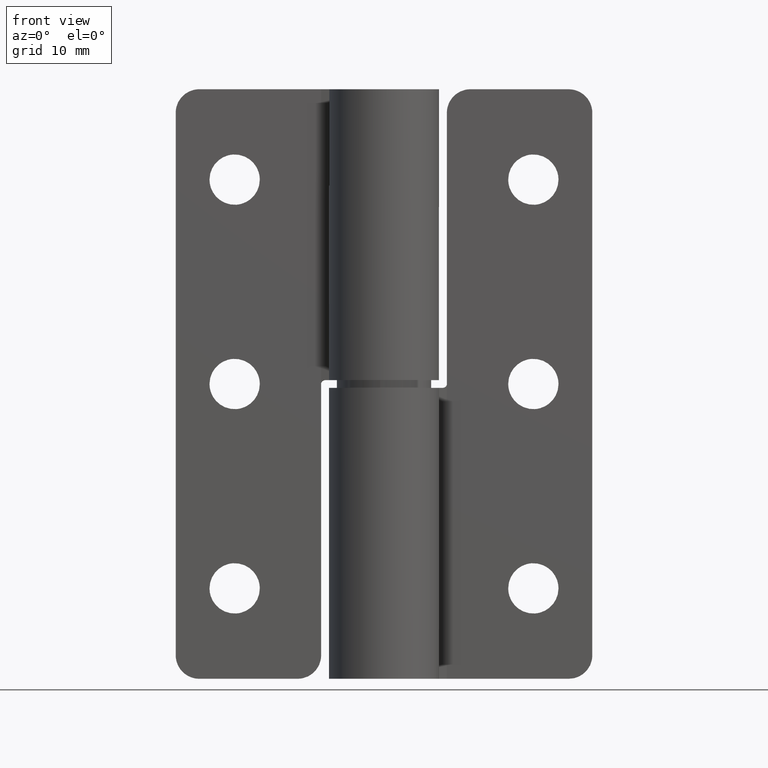
[diagram: clean part render]
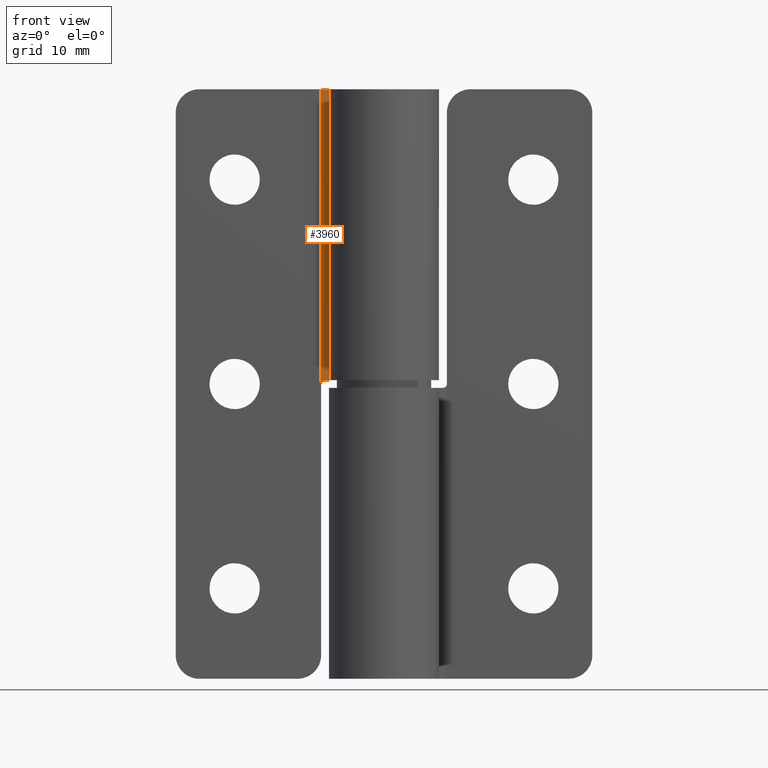
[diagram: same view with one face highlighted and labeled with its STEP entity id]
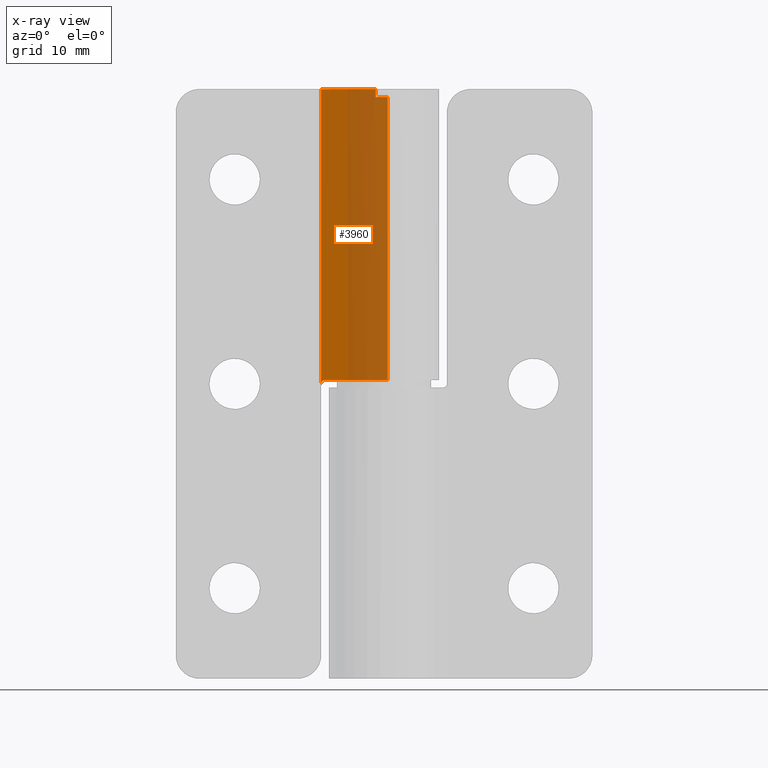
[diagram: x-ray of the same camera — body ghosted, the highlighted face saturated]
A machine part, front view. The second image highlights one B-rep face of the part: STEP entity #3960.
The next image is the same camera in x-ray: the body ghosted, the highlighted face saturated — about 59% of this face is hidden behind the body in this view.
In plain terms, the highlighted face is a freeform B-spline surface patch.
Its self-contained STEP definition (entity closure, byte-faithful):
#3111=CARTESIAN_POINT('',(-8.000000000098821,5.000000000012459,37.500000000012548));
#3112=VERTEX_POINT('',#3111);
#3113=CARTESIAN_POINT('',(-7.499999999940360,4.939333489380671,38.000000000011653));
#3114=VERTEX_POINT('',#3113);
#3115=CARTESIAN_POINT('',(-8.000000000098821,5.000000000012459,37.500000000012548));
#3116=CARTESIAN_POINT('',(-8.000014126965514,5.000001714067864,37.549260720297063));
#3117=CARTESIAN_POINT('',(-7.982905817159173,4.997925911150963,37.664249944378632));
#3118=CARTESIAN_POINT('',(-7.911756588051251,4.989293160225435,37.796766730162503));
#3119=CARTESIAN_POINT('',(-7.795246546859979,4.975156644924645,37.912839396133663));
#3120=CARTESIAN_POINT('',(-7.663045724512573,4.959116319740815,37.983171383495211));
#3121=CARTESIAN_POINT('',(-7.548903565997150,4.945267106798895,38.000008448926501));
#3122=CARTESIAN_POINT('',(-7.499999999940360,4.939333489380671,38.000000000011653));
#3123=B_SPLINE_CURVE_WITH_KNOTS('',3,(#3115,#3116,#3117,#3118,#3119,#3120,#3121,#3122),.UNSPECIFIED.,.F.,.U.,(4,1,1,1,1,4),(0.000003527731848,0.147817530585091,0.344911849634361,0.443448021781590,0.640543383678533,0.788359904573980),.UNSPECIFIED.);
#3124=EDGE_CURVE('',#3112,#3114,#3123,.T.);
#3182=CARTESIAN_POINT('',(-1.050000000100060,4.156735502497970,75.000000000036593));
#3183=VERTEX_POINT('',#3182);
#3189=CARTESIAN_POINT('',(-1.050000000100060,4.156735502497970,74.000000000036593));
#3190=VERTEX_POINT('',#3189);
#3191=CARTESIAN_POINT('',(-1.050000000100060,4.156735502497970,75.000000000036593));
#3192=CARTESIAN_POINT('',(-1.050000000100060,4.156735502497970,74.000000000036593));
#3193=QUASI_UNIFORM_CURVE('',1,(#3191,#3192),.UNSPECIFIED.,.F.,.U.);
#3194=EDGE_CURVE('',#3183,#3190,#3193,.T.);
#3272=CARTESIAN_POINT('',(0.481798594352989,3.970877751124575,74.000000000036593));
#3273=VERTEX_POINT('',#3272);
#3274=CARTESIAN_POINT('',(0.481798594352989,3.970877751124575,74.000000000036593));
#3275=CARTESIAN_POINT('',(-1.050000000100060,4.156735502497970,74.000000000036593));
#3276=QUASI_UNIFORM_CURVE('',1,(#3274,#3275),.UNSPECIFIED.,.F.,.U.);
#3277=EDGE_CURVE('',#3273,#3190,#3276,.T.);
#3384=CARTESIAN_POINT('',(0.481798594352989,3.970877751124575,37.999999999999147));
#3385=VERTEX_POINT('',#3384);
#3386=CARTESIAN_POINT('',(-7.499999999940360,4.939333489380671,38.000000000011653));
#3387=CARTESIAN_POINT('',(0.481798594352989,3.970877751124575,37.999999999999147));
#3388=QUASI_UNIFORM_CURVE('',1,(#3386,#3387),.UNSPECIFIED.,.F.,.U.);
#3389=EDGE_CURVE('',#3114,#3385,#3388,.T.);
#3811=CARTESIAN_POINT('',(-8.000000000098821,5.000000000012459,75.000000000036593));
#3812=VERTEX_POINT('',#3811);
#3813=CARTESIAN_POINT('',(-8.000000000098821,5.000000000012459,37.500000000012548));
#3814=CARTESIAN_POINT('',(-8.000000000098821,5.000000000012459,75.000000000036593));
#3815=QUASI_UNIFORM_CURVE('',1,(#3813,#3814),.UNSPECIFIED.,.F.,.U.);
#3816=EDGE_CURVE('',#3112,#3812,#3815,.T.);
#3933=CARTESIAN_POINT('',(-1.050000000100060,4.156735502497970,75.000000000036593));
#3934=CARTESIAN_POINT('',(-8.000000000098821,5.000000000012459,75.000000000036593));
#3935=QUASI_UNIFORM_CURVE('',1,(#3933,#3934),.UNSPECIFIED.,.F.,.U.);
#3936=EDGE_CURVE('',#3183,#3812,#3935,.T.);
#3942=CARTESIAN_POINT('',(0.905464417706485,3.919473096787263,76.873124927355533));
#3943=CARTESIAN_POINT('',(-8.423666050951887,5.051404681952982,76.873124927355533));
#3944=CARTESIAN_POINT('',(0.905464417706485,3.919473096787263,35.626874066865248));
#3945=CARTESIAN_POINT('',(-8.423666050951887,5.051404681952982,35.626874066865248));
#3946=B_SPLINE_SURFACE_WITH_KNOTS('',1,1,((#3942,#3944),(#3943,#3945)),.UNSPECIFIED.,.F.,.F.,.U.,(2,2),(2,2),(0.0,9.397549915522969),(0.0,41.246250860490292),.UNSPECIFIED.);
#3947=ORIENTED_EDGE('',*,*,#3936,.T.);
#3948=ORIENTED_EDGE('',*,*,#3816,.F.);
#3949=ORIENTED_EDGE('',*,*,#3124,.T.);
#3950=ORIENTED_EDGE('',*,*,#3389,.T.);
#3951=CARTESIAN_POINT('',(0.481798594352989,3.970877751124575,37.999999999999147));
#3952=CARTESIAN_POINT('',(0.481798594352989,3.970877751124575,74.000000000036593));
#3953=QUASI_UNIFORM_CURVE('',1,(#3951,#3952),.UNSPECIFIED.,.F.,.U.);
#3954=EDGE_CURVE('',#3385,#3273,#3953,.T.);
#3955=ORIENTED_EDGE('',*,*,#3954,.T.);
#3956=ORIENTED_EDGE('',*,*,#3277,.T.);
#3957=ORIENTED_EDGE('',*,*,#3194,.F.);
#3958=EDGE_LOOP('',(#3947,#3948,#3949,#3950,#3955,#3956,#3957));
#3959=FACE_OUTER_BOUND('',#3958,.T.);
#3960=ADVANCED_FACE('',(#3959),#3946,.T.);